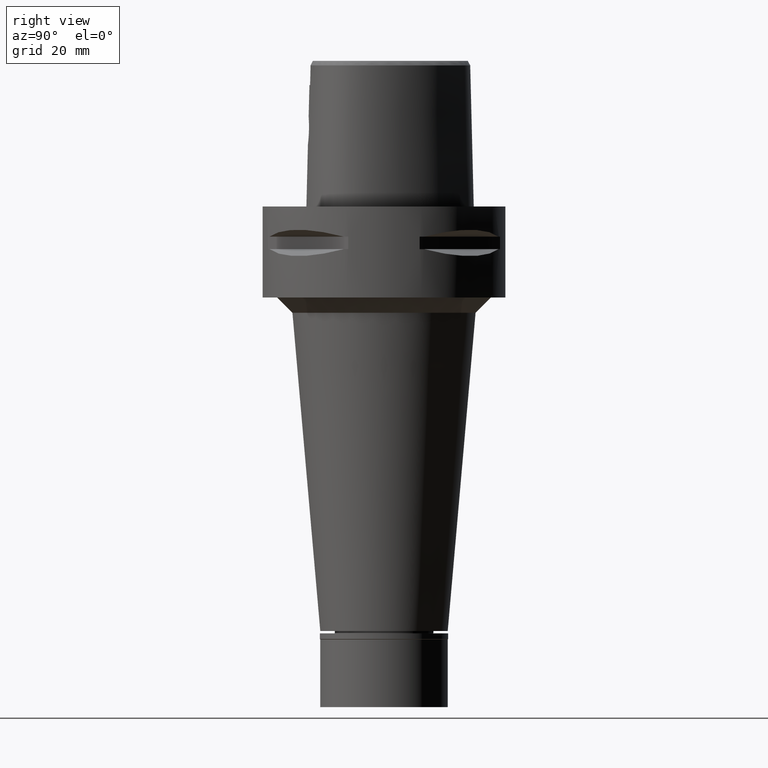
[diagram: clean part render]
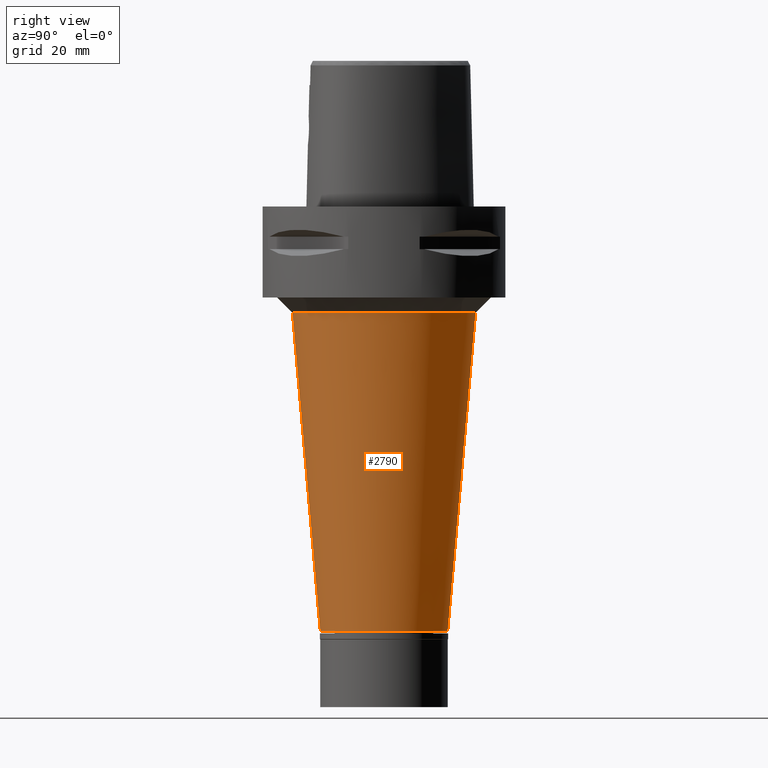
[diagram: same view with one face highlighted and labeled with its STEP entity id]
A machine part, right view. The second image highlights one B-rep face of the part: STEP entity #2790.
In plain terms, the highlighted conical surface has half-angle 5 deg.
Its self-contained STEP definition (entity closure, byte-faithful):
#73 = DIRECTION ( 'NONE',  ( 0.0000000000000000000, 0.0000000000000000000, 1.000000000000000000 ) ) ;
#147 = EDGE_CURVE ( 'NONE', #2191, #3724, #4473, .T. ) ;
#226 = DIRECTION ( 'NONE',  ( 0.0000000000000000000, -1.000000000000000000, 0.0000000000000000000 ) ) ;
#450 = AXIS2_PLACEMENT_3D ( 'NONE', #1903, #3846, #226 ) ;
#582 = AXIS2_PLACEMENT_3D ( 'NONE', #3393, #4210, #2632 ) ;
#600 = EDGE_CURVE ( 'NONE', #2191, #4231, #1805, .T. ) ;
#704 = ORIENTED_EDGE ( 'NONE', *, *, #147, .F. ) ;
#1068 = CARTESIAN_POINT ( 'NONE',  ( 0.0000000000000000000, -21.00000000000000000, -139.9000000000000057 ) ) ;
#1166 = CARTESIAN_POINT ( 'NONE',  ( 0.0000000000000000000, 30.17756080387000139, -35.00000000000000000 ) ) ;
#1274 = CARTESIAN_POINT ( 'NONE',  ( 0.0000000000000000000, 21.00000000000000000, -139.9000000000000057 ) ) ;
#1330 = FACE_OUTER_BOUND ( 'NONE', #2405, .T. ) ;
#1404 = CARTESIAN_POINT ( 'NONE',  ( 0.0000000000000000000, 0.0000000000000000000, -87.45000000000000284 ) ) ;
#1637 = LINE ( 'NONE', #1166, #1976 ) ;
#1805 = LINE ( 'NONE', #2901, #4478 ) ;
#1903 = CARTESIAN_POINT ( 'NONE',  ( 0.0000000000000000000, 0.0000000000000000000, -139.9000000000000057 ) ) ;
#1976 = VECTOR ( 'NONE', #2769, 1000.000000000000000 ) ;
#2113 = ORIENTED_EDGE ( 'NONE', *, *, #600, .T. ) ;
#2191 = VERTEX_POINT ( 'NONE', #3242 ) ;
#2391 = CONICAL_SURFACE ( 'NONE', #3561, 25.58878040193000203, 0.08726646259969973729 ) ;
#2405 = EDGE_LOOP ( 'NONE', ( #704, #2113, #5177, #5206 ) ) ;
#2566 = CIRCLE ( 'NONE', #450, 21.00000000000000000 ) ;
#2632 = DIRECTION ( 'NONE',  ( 0.0000000000000000000, -1.000000000000000000, 0.0000000000000000000 ) ) ;
#2769 = DIRECTION ( 'NONE',  ( 0.0000000000000000000, -0.08715574274767391716, -0.9961946980917442129 ) ) ;
#2790 = ADVANCED_FACE ( 'NONE', ( #1330 ), #2391, .T. ) ;
#2846 = CARTESIAN_POINT ( 'NONE',  ( 0.0000000000000000000, 30.17756080387000139, -35.00000000000000000 ) ) ;
#2901 = CARTESIAN_POINT ( 'NONE',  ( 0.0000000000000000000, -30.17756080387000139, -35.00000000000000000 ) ) ;
#3242 = CARTESIAN_POINT ( 'NONE',  ( 0.0000000000000000000, -30.17756080387000139, -35.00000000000000000 ) ) ;
#3393 = CARTESIAN_POINT ( 'NONE',  ( 0.0000000000000000000, 0.0000000000000000000, -35.00000000000000000 ) ) ;
#3479 = VERTEX_POINT ( 'NONE', #1274 ) ;
#3561 = AXIS2_PLACEMENT_3D ( 'NONE', #1404, #73, #4201 ) ;
#3724 = VERTEX_POINT ( 'NONE', #2846 ) ;
#3846 = DIRECTION ( 'NONE',  ( 0.0000000000000000000, 0.0000000000000000000, 1.000000000000000000 ) ) ;
#4201 = DIRECTION ( 'NONE',  ( 0.0000000000000000000, 1.000000000000000000, 0.0000000000000000000 ) ) ;
#4210 = DIRECTION ( 'NONE',  ( 0.0000000000000000000, 0.0000000000000000000, 1.000000000000000000 ) ) ;
#4231 = VERTEX_POINT ( 'NONE', #1068 ) ;
#4473 = CIRCLE ( 'NONE', #582, 30.17756080385999695 ) ;
#4478 = VECTOR ( 'NONE', #4986, 1000.000000000000000 ) ;
#4654 = EDGE_CURVE ( 'NONE', #4231, #3479, #2566, .T. ) ;
#4763 = EDGE_CURVE ( 'NONE', #3724, #3479, #1637, .T. ) ;
#4986 = DIRECTION ( 'NONE',  ( 0.0000000000000000000, 0.08715574274767391716, -0.9961946980917442129 ) ) ;
#5177 = ORIENTED_EDGE ( 'NONE', *, *, #4654, .T. ) ;
#5206 = ORIENTED_EDGE ( 'NONE', *, *, #4763, .F. ) ;